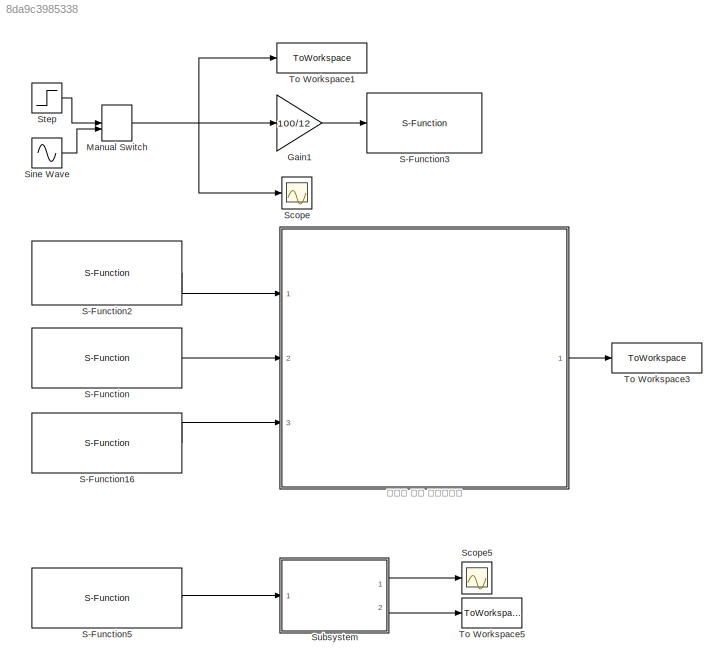
MODEL slx_8da9c3985338
KIND model
CONFIG AbsTol = auto
CONFIG EnableMultiTasking = off
CONFIG FixedStep = ts
CONFIG MaxStep = auto
CONFIG MinStep = auto
CONFIG RelTol = 1e-3
CONFIG SampleTimeConstraint = Unconstrained
CONFIG SolverName = ode4
CONFIG StartTime = 0.0
CONFIG StopTime = 10
BLOCK [Gain] Gain1
  Gain = 100/12
BLOCK [ManualSwitch] Manual Switch
  CurrentSetting = 0
BLOCK [S-Function] S-Function
  EnableBusSupport = off
  FunctionName = DueDaqSfun
  Parameters = TimeInfo,BlockInfo,ParamInfo,PortInfo
  Ports = [0, 1]
  SFcnIsStateOwnerBlock = off
  SFunctionDeploymentMode = off
BLOCK [S-Function] S-Function16
  EnableBusSupport = off
  FunctionName = DueDaqSfun
  Parameters = TimeInfo,BlockInfo,ParamInfo,PortInfo
  Ports = [0, 1]
  SFcnIsStateOwnerBlock = off
  SFunctionDeploymentMode = off
BLOCK [S-Function] S-Function2
  EnableBusSupport = off
  FunctionName = DueDaqSfun
  Parameters = TimeInfo,BlockInfo,ParamInfo,PortInfo
  Ports = [0, 1]
  SFcnIsStateOwnerBlock = off
  SFunctionDeploymentMode = off
BLOCK [S-Function] S-Function3
  EnableBusSupport = off
  FunctionName = DueDaqSfun
  Parameters = TimeInfo,BlockInfo,ParamInfo,PortInfo
  Ports = [1]
  SFcnIsStateOwnerBlock = off
  SFunctionDeploymentMode = off
BLOCK [S-Function] S-Function5
  EnableBusSupport = off
  FunctionName = DueDaqSfun
  Parameters = TimeInfo,BlockInfo,ParamInfo,PortInfo
  Ports = [0, 1]
  SFcnIsStateOwnerBlock = off
  SFunctionDeploymentMode = off
BLOCK [Scope] Scope
  Floating = off
  NumInputPorts = 1
  Ports = [1]
  ScopeSpecificationString = Simulink.scopes.TimeScopeBlockCfg('CurrentConfiguration', extmgr.ConfigurationSet(extmgr.Configuration('Core','General UI',true),extmgr.Configuration('Core','Source UI',true),extmgr.Configuration('Sources','WiredSimulink',true),extmgr.Configuration('Visuals','Time Domain',true,'SerializedDisplays',{struct('MinYLimReal','1.39283','MaxYLimReal','1.4234','YLabelReal','','MinYLimMag','1.39283','MaxYLi...<+1743ch>
BLOCK [Scope] Scope5
  Floating = off
  NumInputPorts = 1
  Ports = [1]
  ScopeSpecificationString = Simulink.scopes.TimeScopeBlockCfg('CurrentConfiguration', extmgr.ConfigurationSet(extmgr.Configuration('Core','General UI',true),extmgr.Configuration('Core','Source UI',true),extmgr.Configuration('Sources','WiredSimulink',true,'DataLoggingVariableName','ScopeData1'),extmgr.Configuration('Visuals','Time Domain',true,'SerializedDisplays',{struct('MinYLimReal','-0.01792','MaxYLimReal','0.1576','YLabe...<+1748ch>
BLOCK [Sin] Sine Wave
  Amplitude = 10
  Frequency = 2
  Ports = [0, 1]
  SampleTime = 0
BLOCK [Step] Step
  After = 0.25
  SampleTime = 0
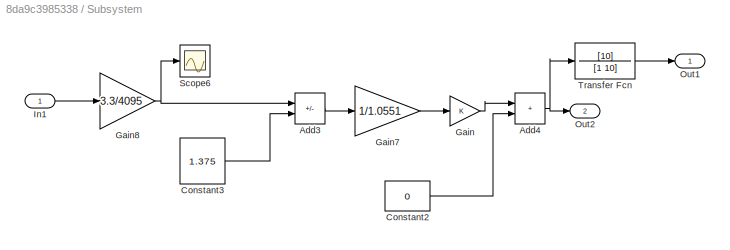
BLOCK [SubSystem] Subsystem
  Ports = [1, 2]
  RequestExecContextInheritance = off
BLOCK [Sum] Subsystem/Add3
  IconShape = rectangular
  Inputs = +-
  Ports = [2, 1]
BLOCK [Sum] Subsystem/Add4
  IconShape = rectangular
  Ports = [2, 1]
BLOCK [Constant] Subsystem/Constant2
  Value = 0
BLOCK [Constant] Subsystem/Constant3
  Value = 1.375
BLOCK [Gain] Subsystem/Gain
BLOCK [Gain] Subsystem/Gain7
  Gain = 1/1.0551
BLOCK [Gain] Subsystem/Gain8
  Gain = 3.3/4095
BLOCK [Inport] Subsystem/In1
BLOCK [Outport] Subsystem/Out1
BLOCK [Outport] Subsystem/Out2
  Port = 2
BLOCK [Scope] Subsystem/Scope6
  Floating = off
  NumInputPorts = 1
  Ports = [1]
  ScopeSpecificationString = Simulink.scopes.TimeScopeBlockCfg('CurrentConfiguration', extmgr.ConfigurationSet(extmgr.Configuration('Core','General UI',true),extmgr.Configuration('Core','Source UI',true),extmgr.Configuration('Sources','WiredSimulink',true,'DataLoggingVariableName','ScopeData2'),extmgr.Configuration('Visuals','Time Domain',true,'SerializedDisplays',{struct('MinYLimReal','1.33219','MaxYLimReal','3.00737','YLabe...<+1691ch>
BLOCK [TransferFcn] Subsystem/Transfer Fcn
  Denominator = [1 10]
  Numerator = [10]
BLOCK [ToWorkspace] To Workspace1
  FixptAsFi = on
  MaxDataPoints = inf
  Ports = [1]
  SampleTime = -1
  VariableName = input_voltage
BLOCK [ToWorkspace] To Workspace3
  FixptAsFi = on
  MaxDataPoints = inf
  Ports = [1]
  SampleTime = -1
  VariableName = w
BLOCK [ToWorkspace] To Workspace5
  FixptAsFi = on
  MaxDataPoints = inf
  Ports = [1]
  SampleTime = -1
  VariableName = i
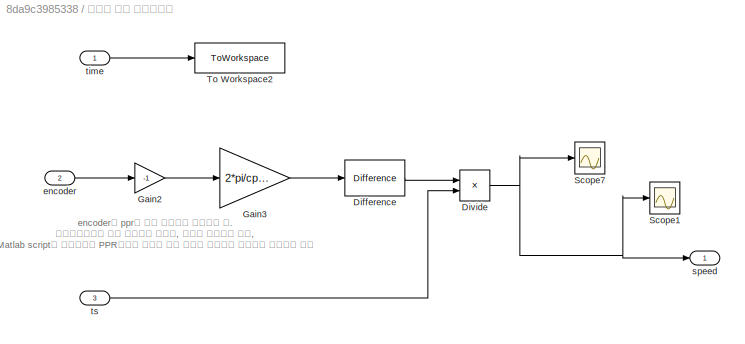
BLOCK [SubSystem] 각속도 계산 서브시스템
  Ports = [3, 1]
  RequestExecContextInheritance = off
BLOCK [Reference] 각속도 계산 서브시스템/Difference  REF=simulink/Discrete/Difference
  Ports = [1, 1]
  SourceBlock = simulink/Discrete/Difference
  SourceProductBaseCode = SL
  SourceType = Difference
BLOCK [Product] 각속도 계산 서브시스템/Divide
  Inputs = */
  Ports = [2, 1]
BLOCK [Gain] 각속도 계산 서브시스템/Gain2
  Gain = -1
BLOCK [Gain] 각속도 계산 서브시스템/Gain3
  Gain = 2*pi/cpr
BLOCK [Scope] 각속도 계산 서브시스템/Scope1
  Floating = off
  NumInputPorts = 1
  Ports = [1]
  ScopeSpecificationString = Simulink.scopes.TimeScopeBlockCfg('CurrentConfiguration', extmgr.ConfigurationSet(extmgr.Configuration('Core','General UI',true),extmgr.Configuration('Core','Source UI',true),extmgr.Configuration('Sources','WiredSimulink',true,'DataLoggingVariableName','ScopeData1'),extmgr.Configuration('Visuals','Time Domain',true,'SerializedDisplays',{struct('MinYLimReal','-1.00000','MaxYLimReal','1.00000','YLab...<+1694ch>
BLOCK [Scope] 각속도 계산 서브시스템/Scope7
  Floating = off
  NumInputPorts = 1
  Ports = [1]
  ScopeSpecificationString = Simulink.scopes.TimeScopeBlockCfg('CurrentConfiguration', extmgr.ConfigurationSet(extmgr.Configuration('Core','General UI',true),extmgr.Configuration('Core','Source UI',true),extmgr.Configuration('Sources','WiredSimulink',true,'DataLoggingVariableName','ScopeData1'),extmgr.Configuration('Visuals','Time Domain',true,'SerializedDisplays',{struct('MinYLimReal','-1.00000','MaxYLimReal','1.00000','YLab...<+1365ch>
BLOCK [ToWorkspace] 각속도 계산 서브시스템/To Workspace2
  FixptAsFi = on
  MaxDataPoints = inf
  Ports = [1]
  SampleTime = -1
  VariableName = true_time
BLOCK [Inport] 각속도 계산 서브시스템/encoder
  Port = 2
BLOCK [Outport] 각속도 계산 서브시스템/speed
BLOCK [Inport] 각속도 계산 서브시스템/time
BLOCK [Inport] 각속도 계산 서브시스템/ts
  Port = 3
ANNOTATION 각속도 계산 서브시스템: encoder의 ppr에 따라 분모값을 변경해야 함. 시험과정에서는 그냥 수정해도 되지만, 자동화 시스템의 경우, Matlab script나 프로그램에 PPR이라는 변수를 하나 만들어 자동으로 변환하게 만드는게 좋음
LINE Gain1:1 -> S-Function3:1
NET Manual Switch:1 -> Gain1:1, Scope:1, To Workspace1:1
LINE S-Function16:1 -> 각속도 계산 서브시스템:3
LINE S-Function2:1 -> 각속도 계산 서브시스템:1
LINE S-Function5:1 -> Subsystem:1
LINE S-Function:1 -> 각속도 계산 서브시스템:2
LINE Sine Wave:1 -> Manual Switch:2
LINE Step:1 -> Manual Switch:1
LINE Subsystem/Add3:1 -> Subsystem/Gain7:1
NET Subsystem/Add4:1 -> Subsystem/Out2:1, Subsystem/Transfer Fcn:1
LINE Subsystem/Constant2:1 -> Subsystem/Add4:2
LINE Subsystem/Constant3:1 -> Subsystem/Add3:2
LINE Subsystem/Gain7:1 -> Subsystem/Gain:1
NET Subsystem/Gain8:1 -> Subsystem/Add3:1, Subsystem/Scope6:1
LINE Subsystem/Gain:1 -> Subsystem/Add4:1
LINE Subsystem/In1:1 -> Subsystem/Gain8:1
LINE Subsystem/Transfer Fcn:1 -> Subsystem/Out1:1
LINE Subsystem:1 -> Scope5:1
LINE Subsystem:2 -> To Workspace5:1
LINE 각속도 계산 서브시스템/Difference:1 -> 각속도 계산 서브시스템/Divide:1
NET 각속도 계산 서브시스템/Divide:1 -> 각속도 계산 서브시스템/Scope1:1, 각속도 계산 서브시스템/Scope7:1, 각속도 계산 서브시스템/speed:1
LINE 각속도 계산 서브시스템/Gain2:1 -> 각속도 계산 서브시스템/Gain3:1
LINE 각속도 계산 서브시스템/Gain3:1 -> 각속도 계산 서브시스템/Difference:1
LINE 각속도 계산 서브시스템/encoder:1 -> 각속도 계산 서브시스템/Gain2:1
LINE 각속도 계산 서브시스템/time:1 -> 각속도 계산 서브시스템/To Workspace2:1
LINE 각속도 계산 서브시스템/ts:1 -> 각속도 계산 서브시스템/Divide:2
LINE 각속도 계산 서브시스템:1 -> To Workspace3:1
note: NET lines group one-source signal fan-out (src -> all destinations, sorted); 1:1 wires keep LINE
